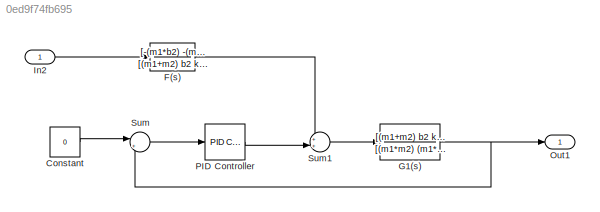
MODEL slx_0ed9f74fb695
KIND model
CONFIG AbsTol = auto
CONFIG FixedStep = auto
CONFIG MaxStep = auto
CONFIG MinStep = auto
CONFIG RelTol = 1e-3
CONFIG SampleTimeConstraint = Unconstrained
CONFIG Solver = VariableStepAuto
CONFIG SolverMode = Auto
CONFIG SolverName = VariableStepAuto
CONFIG StartTime = 0.0
CONFIG StopTime = 10.0
BLOCK [Constant] Constant
  Value = 0
BLOCK [TransferFcn] F(s)
  Denominator = [(m1+m2) b2 k2]
  Numerator = [-(m1*b2) -(m1*k2) 0 0]
BLOCK [TransferFcn] G1(s)
  Denominator = [(m1*m2) (m1*(b1+b2))+(m2*b1) (m1*(k1+k2))+(m2*k1)+(b1*b2) (b1*k2)+(b2*k1) k1*k2]
  Numerator = [(m1+m2) b2 k2]
BLOCK [Inport] In2
  IconDisplay = Port number
BLOCK [Outport] Out1
  IconDisplay = Port number
BLOCK [Reference] PID Controller  REF=simulink/Continuous/PID Controller
  Ports = [1, 1]
  SourceBlock = simulink/Continuous/PID Controller
  SourceType = PID 1dof
BLOCK [Sum] Sum
  IconShape = round
  InputSameDT = off
  Inputs = |+-
  OutDataTypeStr = Inherit: Inherit via internal rule
  Ports = [2, 1]
  SaturateOnIntegerOverflow = off
BLOCK [Sum] Sum1
  IconShape = round
  InputSameDT = off
  Inputs = ++|
  OutDataTypeStr = Inherit: Inherit via internal rule
  Ports = [2, 1]
  SaturateOnIntegerOverflow = off
LINE Constant:1 -> Sum:1
LINE F(s):1 -> Sum1:1
NET G1(s):1 -> Out1:1, Sum:2
LINE In2:1 -> F(s):1
LINE PID Controller:1 -> Sum1:2
LINE Sum1:1 -> G1(s):1
LINE Sum:1 -> PID Controller:1
note: NET lines group one-source signal fan-out (src -> all destinations, sorted); 1:1 wires keep LINE
